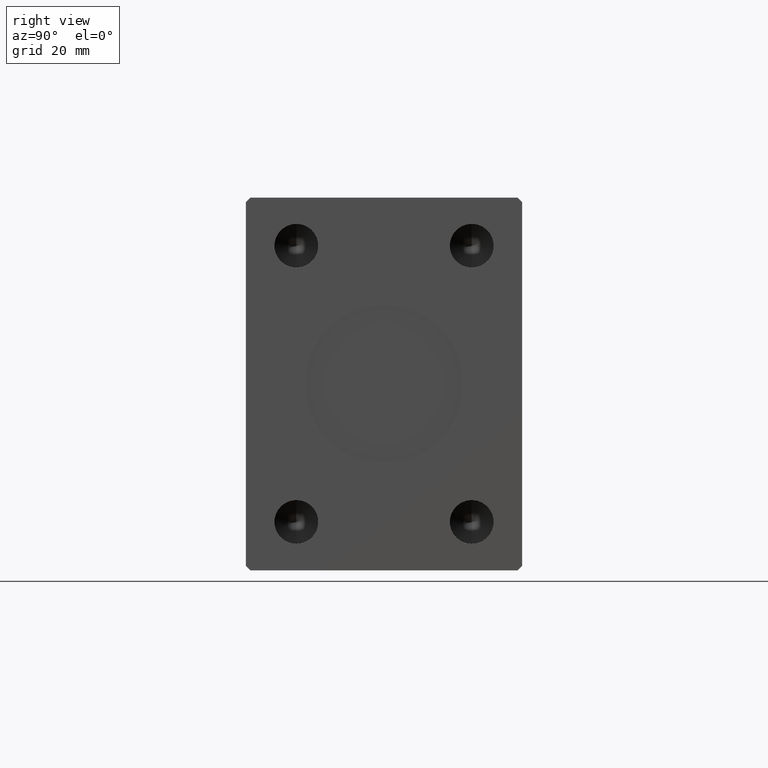
[diagram: clean part render]
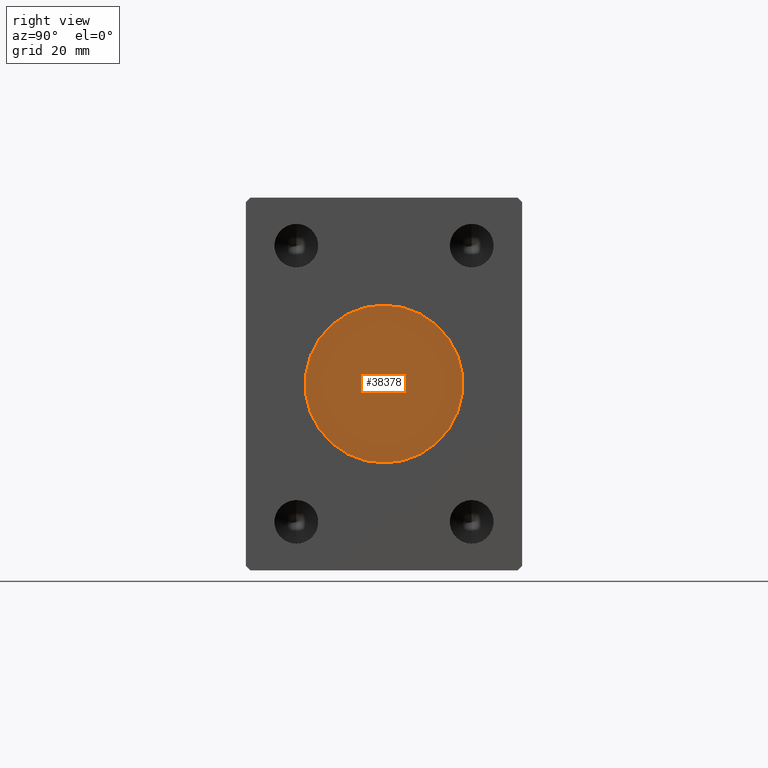
[diagram: same view with one face highlighted and labeled with its STEP entity id]
A machine part, right view. The second image highlights one B-rep face of the part: STEP entity #38378.
In plain terms, the highlighted planar face has unit normal (1, 0, 0).
Its self-contained STEP definition (entity closure, byte-faithful):
#254 = DIRECTION ( 'NONE',  ( 0.000000000000000000, 0.000000000000000000, -1.000000000000000000 ) ) ;
#2684 = VERTEX_POINT ( 'NONE', #41958 ) ;
#4308 = CARTESIAN_POINT ( 'NONE',  ( 95.79999999999999716, 0.000000000000000000, 0.000000000000000000 ) ) ;
#6911 = ORIENTED_EDGE ( 'NONE', *, *, #32543, .T. ) ;
#9451 = CARTESIAN_POINT ( 'NONE',  ( 95.79999999999999716, 0.000000000000000000, 0.000000000000000000 ) ) ;
#9671 = PLANE ( 'NONE',  #24926 ) ;
#11039 = DIRECTION ( 'NONE',  ( 0.000000000000000000, 0.000000000000000000, -1.000000000000000000 ) ) ;
#12442 = CIRCLE ( 'NONE', #16757, 18.00000000000000000 ) ;
#12835 = VERTEX_POINT ( 'NONE', #39002 ) ;
#16757 = AXIS2_PLACEMENT_3D ( 'NONE', #30880, #41876, #11039 ) ;
#20259 = DIRECTION ( 'NONE',  ( 0.000000000000000000, 0.000000000000000000, -1.000000000000000000 ) ) ;
#24926 = AXIS2_PLACEMENT_3D ( 'NONE', #9451, #36934, #20259 ) ;
#26288 = EDGE_LOOP ( 'NONE', ( #36032, #6911 ) ) ;
#27971 = DIRECTION ( 'NONE',  ( 1.000000000000000000, 0.000000000000000000, 0.000000000000000000 ) ) ;
#29114 = AXIS2_PLACEMENT_3D ( 'NONE', #4308, #27971, #254 ) ;
#29363 = EDGE_CURVE ( 'NONE', #12835, #2684, #12442, .T. ) ;
#30183 = FACE_OUTER_BOUND ( 'NONE', #26288, .T. ) ;
#30880 = CARTESIAN_POINT ( 'NONE',  ( 95.79999999999999716, 0.000000000000000000, 0.000000000000000000 ) ) ;
#32543 = EDGE_CURVE ( 'NONE', #2684, #12835, #39856, .T. ) ;
#36032 = ORIENTED_EDGE ( 'NONE', *, *, #29363, .T. ) ;
#36934 = DIRECTION ( 'NONE',  ( 1.000000000000000000, 0.000000000000000000, 0.000000000000000000 ) ) ;
#38378 = ADVANCED_FACE ( 'NONE', ( #30183 ), #9671, .T. ) ;
#39002 = CARTESIAN_POINT ( 'NONE',  ( 95.79999999999999716, 0.000000000000000000, -18.00000000000000000 ) ) ;
#39856 = CIRCLE ( 'NONE', #29114, 18.00000000000000000 ) ;
#41876 = DIRECTION ( 'NONE',  ( 1.000000000000000000, 0.000000000000000000, 0.000000000000000000 ) ) ;
#41958 = CARTESIAN_POINT ( 'NONE',  ( 95.79999999999999716, 2.204364238465235428E-15, 18.00000000000000000 ) ) ;